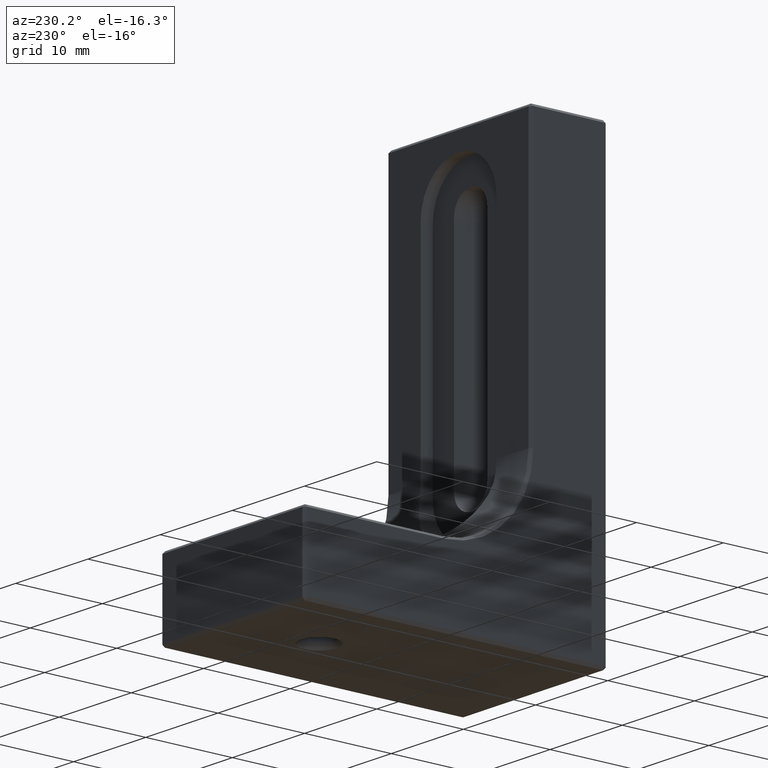
[diagram: clean part render]
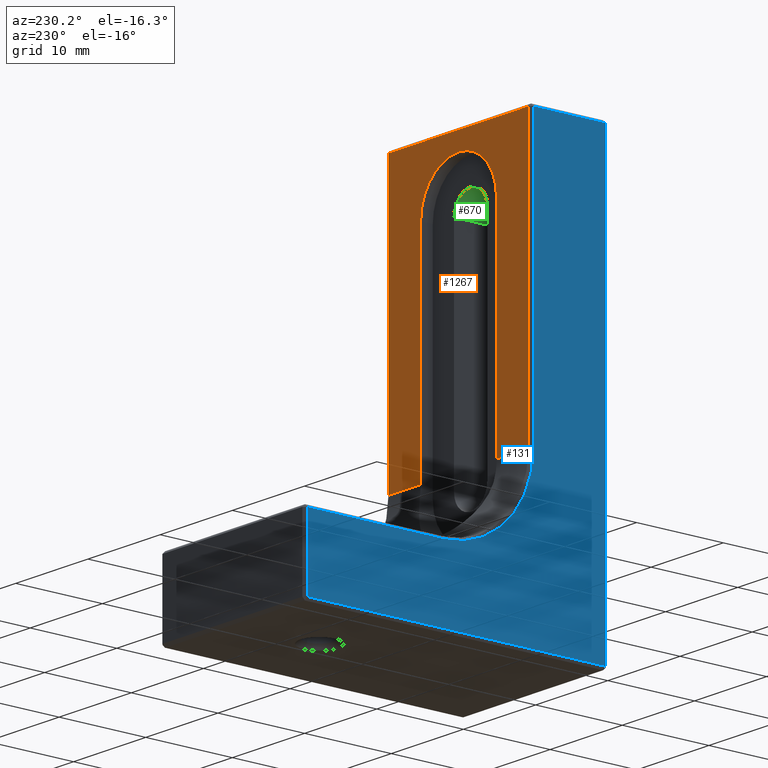
[diagram: same view with three faces highlighted in distinct colors, each labeled with its STEP entity id]
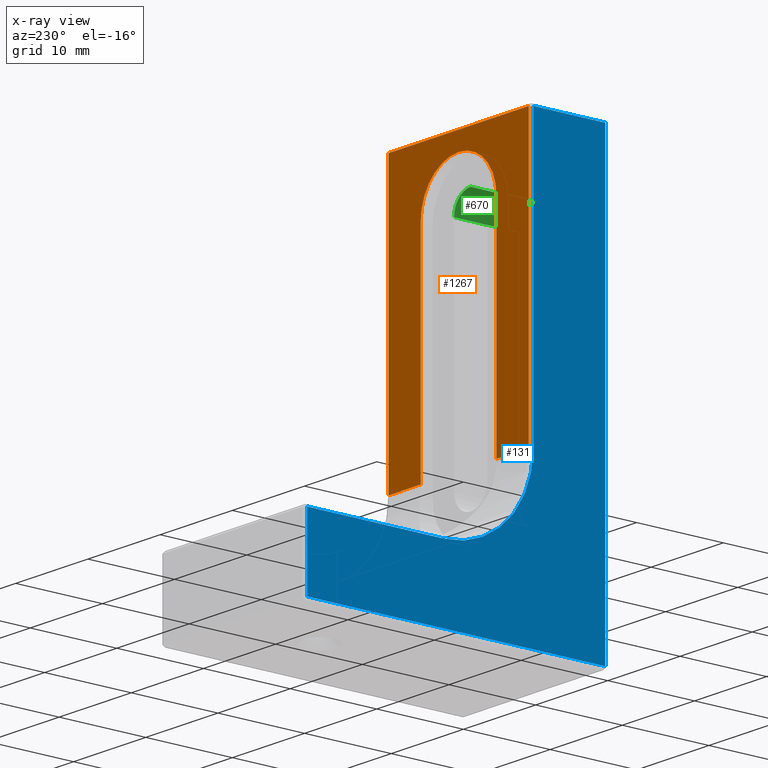
[diagram: x-ray of the same camera — body ghosted, the three highlighted faces saturated]
A machine part, auxiliary view with three faces highlighted in distinct colors.
The next image is the same camera in x-ray (body ghosted, the three faces saturated) — at least one of them is partly hidden behind the body in this view.
Their STEP definitions:

[orange] entity #1267 — the highlighted planar face has unit normal (0, -1, -0).
#3 = AXIS2_PLACEMENT_3D ( 'NONE', #85, #704, #216 ) ;
#17 = VERTEX_POINT ( 'NONE', #801 ) ;
#18 = EDGE_CURVE ( 'NONE', #750, #1346, #1262, .T. ) ;
#24 = CARTESIAN_POINT ( 'NONE',  ( 10.00000000000000000, 8.899999999999993250, 50.49999999999998579 ) ) ;
#85 = CARTESIAN_POINT ( 'NONE',  ( 2.975891721928067571E-15, 8.899999999999995026, 43.18999999999999062 ) ) ;
#91 = FACE_OUTER_BOUND ( 'NONE', #1300, .T. ) ;
#96 = CARTESIAN_POINT ( 'NONE',  ( 10.00000000000000000, 8.899999999999998579, 8.899999999999995026 ) ) ;
#119 = VERTEX_POINT ( 'NONE', #944 ) ;
#127 = CARTESIAN_POINT ( 'NONE',  ( 9.699999999999999289, 8.899999999999996803, 18.89999999999999503 ) ) ;
#133 = CARTESIAN_POINT ( 'NONE',  ( 9.699999999999999289, 8.899999999999993250, 50.49999999999998579 ) ) ;
#135 = AXIS2_PLACEMENT_3D ( 'NONE', #1383, #337, #571 ) ;
#216 = DIRECTION ( 'NONE',  ( 0.000000000000000000, 0.000000000000000000, -1.000000000000000000 ) ) ;
#218 = ORIENTED_EDGE ( 'NONE', *, *, #1091, .T. ) ;
#233 = VECTOR ( 'NONE', #899, 1000.000000000000000 ) ;
#277 = LINE ( 'NONE', #540, #233 ) ;
#281 = EDGE_CURVE ( 'NONE', #1460, #1568, #1212, .T. ) ;
#337 = DIRECTION ( 'NONE',  ( 0.000000000000000000, -1.000000000000000000, -1.242045448193417777E-16 ) ) ;
#355 = PLANE ( 'NONE',  #562 ) ;
#372 = EDGE_CURVE ( 'NONE', #1107, #1460, #1244, .T. ) ;
#388 = ORIENTED_EDGE ( 'NONE', *, *, #1168, .T. ) ;
#420 = EDGE_CURVE ( 'NONE', #17, #119, #778, .T. ) ;
#423 = DIRECTION ( 'NONE',  ( -0.000000000000000000, 1.242045448193417777E-16, -1.000000000000000000 ) ) ;
#490 = CIRCLE ( 'NONE', #135, 5.249999999999997335 ) ;
#528 = CARTESIAN_POINT ( 'NONE',  ( -10.00000000000000000, 8.899999999999996803, 18.89999999999999503 ) ) ;
#540 = CARTESIAN_POINT ( 'NONE',  ( -9.699999999999992184, 8.899999999999998579, 8.899999999999995026 ) ) ;
#542 = CARTESIAN_POINT ( 'NONE',  ( -5.249999999999997335, 8.899999999999995026, 43.18999999999999062 ) ) ;
#549 = VERTEX_POINT ( 'NONE', #542 ) ;
#556 = VECTOR ( 'NONE', #645, 1000.000000000000000 ) ;
#561 = ORIENTED_EDGE ( 'NONE', *, *, #922, .T. ) ;
#562 = AXIS2_PLACEMENT_3D ( 'NONE', #96, #1063, #1562 ) ;
#571 = DIRECTION ( 'NONE',  ( 0.000000000000000000, 0.000000000000000000, -1.000000000000000000 ) ) ;
#611 = CARTESIAN_POINT ( 'NONE',  ( 2.975891721928067571E-15, 8.899999999999995026, 48.43999999999999062 ) ) ;
#645 = DIRECTION ( 'NONE',  ( 1.000000000000000000, 0.000000000000000000, 0.000000000000000000 ) ) ;
#649 = CARTESIAN_POINT ( 'NONE',  ( -5.249999999999999112, 8.900000000000000355, 18.89999999999999503 ) ) ;
#650 = CARTESIAN_POINT ( 'NONE',  ( -10.00000000000000000, 8.899999999999996803, 18.89999999999999503 ) ) ;
#687 = CIRCLE ( 'NONE', #3, 5.249999999999997335 ) ;
#704 = DIRECTION ( 'NONE',  ( 0.000000000000000000, -1.000000000000000000, -1.242045448193417777E-16 ) ) ;
#742 = VECTOR ( 'NONE', #1216, 1000.000000000000000 ) ;
#750 = VERTEX_POINT ( 'NONE', #649 ) ;
#751 = DIRECTION ( 'NONE',  ( -1.000000000000000000, 0.000000000000000000, 0.000000000000000000 ) ) ;
#778 = LINE ( 'NONE', #1360, #791 ) ;
#791 = VECTOR ( 'NONE', #997, 1000.000000000000000 ) ;
#801 = CARTESIAN_POINT ( 'NONE',  ( 5.250000000000000000, 8.900000000000000355, 18.89999999999999503 ) ) ;
#839 = VECTOR ( 'NONE', #1155, 1000.000000000000000 ) ;
#867 = ORIENTED_EDGE ( 'NONE', *, *, #992, .T. ) ;
#899 = DIRECTION ( 'NONE',  ( 0.000000000000000000, -1.242045448193417777E-16, 1.000000000000000000 ) ) ;
#922 = EDGE_CURVE ( 'NONE', #1346, #1107, #277, .T. ) ;
#944 = CARTESIAN_POINT ( 'NONE',  ( 5.250000000000003553, 8.899999999999995026, 43.18999999999999062 ) ) ;
#952 = VECTOR ( 'NONE', #751, 1000.000000000000000 ) ;
#992 = EDGE_CURVE ( 'NONE', #1192, #549, #490, .T. ) ;
#997 = DIRECTION ( 'NONE',  ( 1.365923996832131856E-16, -1.242045448193417777E-16, 1.000000000000000000 ) ) ;
#1059 = CARTESIAN_POINT ( 'NONE',  ( -9.699999999999992184, 8.899999999999993250, 50.49999999999998579 ) ) ;
#1063 = DIRECTION ( 'NONE',  ( 0.000000000000000000, -1.000000000000000000, -1.242045448193417777E-16 ) ) ;
#1091 = EDGE_CURVE ( 'NONE', #119, #1192, #687, .T. ) ;
#1107 = VERTEX_POINT ( 'NONE', #1059 ) ;
#1134 = LINE ( 'NONE', #528, #952 ) ;
#1155 = DIRECTION ( 'NONE',  ( -1.000000000000000000, 0.000000000000000000, 0.000000000000000000 ) ) ;
#1168 = EDGE_CURVE ( 'NONE', #549, #750, #1206, .T. ) ;
#1186 = CARTESIAN_POINT ( 'NONE',  ( -9.699999999999992184, 8.899999999999996803, 18.89999999999999503 ) ) ;
#1192 = VERTEX_POINT ( 'NONE', #611 ) ;
#1206 = LINE ( 'NONE', #1322, #742 ) ;
#1212 = LINE ( 'NONE', #127, #1447 ) ;
#1216 = DIRECTION ( 'NONE',  ( -1.365923996832131856E-16, 1.242045448193417777E-16, -1.000000000000000000 ) ) ;
#1232 = ORIENTED_EDGE ( 'NONE', *, *, #18, .T. ) ;
#1244 = LINE ( 'NONE', #24, #556 ) ;
#1259 = ORIENTED_EDGE ( 'NONE', *, *, #372, .T. ) ;
#1262 = LINE ( 'NONE', #650, #839 ) ;
#1267 = ADVANCED_FACE ( 'NONE', ( #91 ), #355, .F. ) ;
#1279 = CARTESIAN_POINT ( 'NONE',  ( 9.699999999999999289, 8.899999999999996803, 18.89999999999999503 ) ) ;
#1290 = ORIENTED_EDGE ( 'NONE', *, *, #281, .T. ) ;
#1300 = EDGE_LOOP ( 'NONE', ( #1232, #561, #1259, #1290, #1344, #1511, #218, #867, #388 ) ) ;
#1322 = CARTESIAN_POINT ( 'NONE',  ( -5.250000000000000888, 8.899999999999998579, 8.899999999999996803 ) ) ;
#1344 = ORIENTED_EDGE ( 'NONE', *, *, #1563, .T. ) ;
#1346 = VERTEX_POINT ( 'NONE', #1186 ) ;
#1360 = CARTESIAN_POINT ( 'NONE',  ( 5.249999999999999112, 8.899999999999998579, 8.899999999999995026 ) ) ;
#1383 = CARTESIAN_POINT ( 'NONE',  ( 2.975891721928067571E-15, 8.899999999999995026, 43.18999999999999062 ) ) ;
#1447 = VECTOR ( 'NONE', #423, 1000.000000000000000 ) ;
#1460 = VERTEX_POINT ( 'NONE', #133 ) ;
#1511 = ORIENTED_EDGE ( 'NONE', *, *, #420, .T. ) ;
#1562 = DIRECTION ( 'NONE',  ( 0.000000000000000000, 1.242045448193417777E-16, -1.000000000000000000 ) ) ;
#1563 = EDGE_CURVE ( 'NONE', #1568, #17, #1134, .T. ) ;
#1568 = VERTEX_POINT ( 'NONE', #1279 ) ;

[blue] entity #131 — the highlighted planar face has unit normal (1, 0, 0).
#20 = LINE ( 'NONE', #880, #394 ) ;
#37 = CARTESIAN_POINT ( 'NONE',  ( -10.00000000000000000, 0.000000000000000000, 0.3000000000000017097 ) ) ;
#47 = AXIS2_PLACEMENT_3D ( 'NONE', #1142, #196, #426 ) ;
#53 = DIRECTION ( 'NONE',  ( 0.000000000000000000, -1.224646799147353207E-16, 1.000000000000000000 ) ) ;
#64 = CARTESIAN_POINT ( 'NONE',  ( -10.00000000000000000, 18.89999999999999858, 18.89999999999999503 ) ) ;
#95 = VERTEX_POINT ( 'NONE', #1054 ) ;
#102 = EDGE_CURVE ( 'NONE', #1485, #646, #625, .T. ) ;
#120 = EDGE_CURVE ( 'NONE', #574, #1485, #201, .T. ) ;
#131 = ADVANCED_FACE ( 'NONE', ( #1278 ), #538, .F. ) ;
#176 = DIRECTION ( 'NONE',  ( 0.000000000000000000, 1.000000000000000000, 1.993935029858398650E-16 ) ) ;
#196 = DIRECTION ( 'NONE',  ( 1.000000000000000000, 0.000000000000000000, 0.000000000000000000 ) ) ;
#201 = LINE ( 'NONE', #1531, #457 ) ;
#259 = ORIENTED_EDGE ( 'NONE', *, *, #390, .T. ) ;
#293 = DIRECTION ( 'NONE',  ( 0.000000000000000000, 0.000000000000000000, -1.000000000000000000 ) ) ;
#306 = CARTESIAN_POINT ( 'NONE',  ( -10.00000000000000000, 0.3000000000000085376, 0.3000000000000017097 ) ) ;
#328 = DIRECTION ( 'NONE',  ( 0.000000000000000000, 1.242045448193417777E-16, -1.000000000000000000 ) ) ;
#352 = LINE ( 'NONE', #498, #1426 ) ;
#361 = VECTOR ( 'NONE', #176, 1000.000000000000000 ) ;
#390 = EDGE_CURVE ( 'NONE', #646, #95, #623, .T. ) ;
#394 = VECTOR ( 'NONE', #293, 1000.000000000000000 ) ;
#407 = EDGE_CURVE ( 'NONE', #482, #644, #505, .T. ) ;
#426 = DIRECTION ( 'NONE',  ( 0.000000000000000000, 0.000000000000000000, -1.000000000000000000 ) ) ;
#456 = DIRECTION ( 'NONE',  ( 0.000000000000000000, 0.000000000000000000, -1.000000000000000000 ) ) ;
#457 = VECTOR ( 'NONE', #328, 1000.000000000000000 ) ;
#482 = VERTEX_POINT ( 'NONE', #306 ) ;
#498 = CARTESIAN_POINT ( 'NONE',  ( -10.00000000000000000, 0.000000000000000000, 50.49999999999999289 ) ) ;
#505 = LINE ( 'NONE', #1353, #1166 ) ;
#538 = PLANE ( 'NONE',  #47 ) ;
#559 = VECTOR ( 'NONE', #1375, 1000.000000000000000 ) ;
#563 = DIRECTION ( 'NONE',  ( 1.000000000000000000, 0.000000000000000000, 0.000000000000000000 ) ) ;
#574 = VERTEX_POINT ( 'NONE', #1049 ) ;
#588 = DIRECTION ( 'NONE',  ( 0.000000000000000000, 1.000000000000000000, 0.000000000000000000 ) ) ;
#623 = LINE ( 'NONE', #1004, #361 ) ;
#625 = CIRCLE ( 'NONE', #1496, 10.30000000000000959 ) ;
#644 = VERTEX_POINT ( 'NONE', #949 ) ;
#646 = VERTEX_POINT ( 'NONE', #1075 ) ;
#816 = EDGE_CURVE ( 'NONE', #1157, #482, #900, .T. ) ;
#880 = CARTESIAN_POINT ( 'NONE',  ( -10.00000000000000000, 34.70000000000000284, 0.000000000000000000 ) ) ;
#886 = ORIENTED_EDGE ( 'NONE', *, *, #816, .T. ) ;
#900 = LINE ( 'NONE', #37, #559 ) ;
#949 = CARTESIAN_POINT ( 'NONE',  ( -10.00000000000000000, 0.3000000000000024314, 50.49999999999999289 ) ) ;
#981 = ORIENTED_EDGE ( 'NONE', *, *, #120, .T. ) ;
#1004 = CARTESIAN_POINT ( 'NONE',  ( -10.00000000000000000, -1.714784125678221266E-15, 8.599999999999990763 ) ) ;
#1049 = CARTESIAN_POINT ( 'NONE',  ( -10.00000000000000000, 8.599999999999992539, 50.49999999999999289 ) ) ;
#1054 = CARTESIAN_POINT ( 'NONE',  ( -10.00000000000000000, 34.70000000000000284, 8.599999999999997868 ) ) ;
#1075 = CARTESIAN_POINT ( 'NONE',  ( -10.00000000000000000, 18.90000000000000213, 8.599999999999987210 ) ) ;
#1077 = ORIENTED_EDGE ( 'NONE', *, *, #1392, .T. ) ;
#1087 = CARTESIAN_POINT ( 'NONE',  ( -10.00000000000000000, 34.70000000000000284, 0.3000000000000017097 ) ) ;
#1140 = ORIENTED_EDGE ( 'NONE', *, *, #102, .T. ) ;
#1142 = CARTESIAN_POINT ( 'NONE',  ( -10.00000000000000000, 0.000000000000000000, 0.000000000000000000 ) ) ;
#1157 = VERTEX_POINT ( 'NONE', #1087 ) ;
#1166 = VECTOR ( 'NONE', #53, 1000.000000000000000 ) ;
#1207 = ORIENTED_EDGE ( 'NONE', *, *, #1505, .T. ) ;
#1278 = FACE_OUTER_BOUND ( 'NONE', #1340, .T. ) ;
#1340 = EDGE_LOOP ( 'NONE', ( #1207, #886, #1408, #1077, #981, #1140, #259 ) ) ;
#1341 = CARTESIAN_POINT ( 'NONE',  ( -10.00000000000000000, 8.599999999999996092, 18.89999999999999503 ) ) ;
#1353 = CARTESIAN_POINT ( 'NONE',  ( -10.00000000000000000, 0.3000000000000085931, 3.673940397442164885E-17 ) ) ;
#1375 = DIRECTION ( 'NONE',  ( 0.000000000000000000, -1.000000000000000000, 0.000000000000000000 ) ) ;
#1392 = EDGE_CURVE ( 'NONE', #644, #574, #352, .T. ) ;
#1408 = ORIENTED_EDGE ( 'NONE', *, *, #407, .T. ) ;
#1426 = VECTOR ( 'NONE', #588, 1000.000000000000000 ) ;
#1485 = VERTEX_POINT ( 'NONE', #1341 ) ;
#1496 = AXIS2_PLACEMENT_3D ( 'NONE', #64, #563, #456 ) ;
#1505 = EDGE_CURVE ( 'NONE', #95, #1157, #20, .T. ) ;
#1531 = CARTESIAN_POINT ( 'NONE',  ( -10.00000000000000000, 8.599999999999997868, 1.068159085446339032E-15 ) ) ;

[green] entity #670 — the highlighted cylindrical surface (edge-blend (fillet) strip) has radius 2.3 mm, axis along (-0, 1, -0).
#12 = LINE ( 'NONE', #21, #529 ) ;
#21 = CARTESIAN_POINT ( 'NONE',  ( 2.975891721928067571E-15, -6.938893903907228378E-15, 45.48999999999998778 ) ) ;
#23 = VERTEX_POINT ( 'NONE', #667 ) ;
#29 = DIRECTION ( 'NONE',  ( 0.000000000000000000, 0.000000000000000000, 1.000000000000000000 ) ) ;
#75 = CARTESIAN_POINT ( 'NONE',  ( 2.975891721928067571E-15, 7.500000000000003553, 43.18999999999999062 ) ) ;
#86 = EDGE_CURVE ( 'NONE', #918, #307, #1416, .T. ) ;
#115 = ORIENTED_EDGE ( 'NONE', *, *, #884, .T. ) ;
#193 = CARTESIAN_POINT ( 'NONE',  ( 2.300000000000002487, -6.938893903907228378E-15, 43.18999999999999062 ) ) ;
#247 = DIRECTION ( 'NONE',  ( -0.000000000000000000, 1.000000000000000000, -0.000000000000000000 ) ) ;
#285 = AXIS2_PLACEMENT_3D ( 'NONE', #1128, #1113, #29 ) ;
#307 = VERTEX_POINT ( 'NONE', #892 ) ;
#354 = VERTEX_POINT ( 'NONE', #1367 ) ;
#364 = AXIS2_PLACEMENT_3D ( 'NONE', #957, #247, #829 ) ;
#398 = CARTESIAN_POINT ( 'NONE',  ( 2.300000000000002487, 7.500000000000003553, 43.18999999999999062 ) ) ;
#523 = EDGE_CURVE ( 'NONE', #23, #918, #569, .T. ) ;
#529 = VECTOR ( 'NONE', #726, 1000.000000000000000 ) ;
#541 = DIRECTION ( 'NONE',  ( 0.000000000000000000, 0.000000000000000000, 1.000000000000000000 ) ) ;
#569 = LINE ( 'NONE', #193, #1266 ) ;
#653 = ORIENTED_EDGE ( 'NONE', *, *, #86, .F. ) ;
#667 = CARTESIAN_POINT ( 'NONE',  ( 2.300000000000002487, -6.938893903907228378E-15, 43.18999999999999062 ) ) ;
#670 = ADVANCED_FACE ( 'NONE', ( #1304 ), #1325, .F. ) ;
#726 = DIRECTION ( 'NONE',  ( -0.000000000000000000, 1.000000000000000000, -0.000000000000000000 ) ) ;
#757 = AXIS2_PLACEMENT_3D ( 'NONE', #75, #1147, #541 ) ;
#764 = EDGE_CURVE ( 'NONE', #354, #23, #1580, .T. ) ;
#771 = ORIENTED_EDGE ( 'NONE', *, *, #523, .F. ) ;
#829 = DIRECTION ( 'NONE',  ( 0.000000000000000000, 0.000000000000000000, 1.000000000000000000 ) ) ;
#884 = EDGE_CURVE ( 'NONE', #354, #307, #12, .T. ) ;
#892 = CARTESIAN_POINT ( 'NONE',  ( 2.975891721928067571E-15, 7.500000000000003553, 45.48999999999998778 ) ) ;
#918 = VERTEX_POINT ( 'NONE', #398 ) ;
#957 = CARTESIAN_POINT ( 'NONE',  ( 2.975891721928067571E-15, -6.938893903907228378E-15, 43.18999999999999062 ) ) ;
#1056 = DIRECTION ( 'NONE',  ( -0.000000000000000000, 1.000000000000000000, -0.000000000000000000 ) ) ;
#1106 = ORIENTED_EDGE ( 'NONE', *, *, #764, .F. ) ;
#1113 = DIRECTION ( 'NONE',  ( 0.000000000000000000, 1.000000000000000000, 0.000000000000000000 ) ) ;
#1128 = CARTESIAN_POINT ( 'NONE',  ( 2.975891721928067571E-15, -6.938893903907228378E-15, 43.18999999999999062 ) ) ;
#1147 = DIRECTION ( 'NONE',  ( -0.000000000000000000, -1.000000000000000000, -0.000000000000000000 ) ) ;
#1266 = VECTOR ( 'NONE', #1056, 1000.000000000000000 ) ;
#1304 = FACE_OUTER_BOUND ( 'NONE', #1327, .T. ) ;
#1325 = CYLINDRICAL_SURFACE ( 'NONE', #364, 2.299999999999996270 ) ;
#1327 = EDGE_LOOP ( 'NONE', ( #1106, #115, #653, #771 ) ) ;
#1367 = CARTESIAN_POINT ( 'NONE',  ( 2.975891721928067571E-15, -6.938893903907228378E-15, 45.48999999999998778 ) ) ;
#1416 = CIRCLE ( 'NONE', #757, 2.299999999999996270 ) ;
#1580 = CIRCLE ( 'NONE', #285, 2.299999999999996270 ) ;